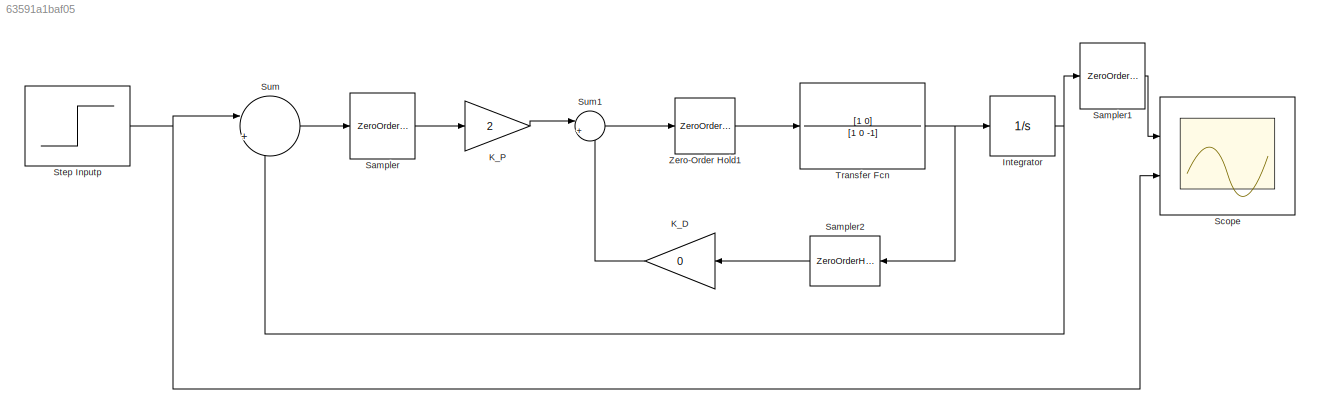
MODEL slx_63591a1baf05
KIND model
CONFIG AbsTol = auto
CONFIG EnableMultiTasking = off
CONFIG FixedStep = auto
CONFIG MaxStep = auto
CONFIG MinStep = auto
CONFIG RelTol = 1e-3
CONFIG SampleTimeConstraint = Unconstrained
CONFIG Solver = VariableStepAuto
CONFIG SolverName = VariableStepAuto
CONFIG StartTime = 0.0
CONFIG StopTime = 50
BLOCK [Integrator] Integrator
  Ports = [1, 1]
BLOCK [Gain] K_D
  Gain = 0
  OutDataTypeStr = Inherit: Inherit via internal rule
  ParamDataTypeStr = Inherit: Inherit via internal rule
  SaturateOnIntegerOverflow = off
BLOCK [Gain] K_P
  Gain = 2
  OutDataTypeStr = Inherit: Inherit via internal rule
  ParamDataTypeStr = Inherit: Inherit via internal rule
  SaturateOnIntegerOverflow = off
BLOCK [ZeroOrderHold] Sampler
  SampleTime = -1
BLOCK [ZeroOrderHold] Sampler1
  SampleTime = -1
BLOCK [ZeroOrderHold] Sampler2
  SampleTime = -1
BLOCK [Scope] Scope
  Floating = off
  NumInputPorts = 2
  Ports = [2]
  ScopeSpecificationString = Simulink.scopes.TimeScopeBlockCfg('CurrentConfiguration', extmgr.ConfigurationSet(extmgr.Configuration('Core','General UI',true,'FigureColor',[1 1 1]),extmgr.Configuration('Core','Source UI',true),extmgr.Configuration('Sources','WiredSimulink',true),extmgr.Configuration('Visuals','Time Domain',true,'SerializedDisplays',{struct('MinYLimReal','-56727562.90249','MaxYLimReal','168954734.99678','YLabel...<+1754ch>
BLOCK [Step] Step Inputp
  SampleTime = 0
  Time = 0
BLOCK [Sum] Sum
  IconShape = round
  InputSameDT = off
  Inputs = |+-
  OutDataTypeStr = Inherit: Inherit via internal rule
  Ports = [2, 1]
  SaturateOnIntegerOverflow = off
BLOCK [Sum] Sum1
  IconShape = round
  InputSameDT = off
  Inputs = |+-
  OutDataTypeStr = Inherit: Inherit via internal rule
  Ports = [2, 1]
  SaturateOnIntegerOverflow = off
BLOCK [TransferFcn] Transfer Fcn
  Denominator = [1 0 -1]
  Numerator = [1 0]
BLOCK [ZeroOrderHold] Zero-Order Hold1
  SampleTime = -1
NET Integrator:1 -> Sampler1:1, Sum:2
LINE K_D:1 -> Sum1:2
LINE K_P:1 -> Sum1:1
LINE Sampler1:1 -> Scope:1
LINE Sampler2:1 -> K_D:1
LINE Sampler:1 -> K_P:1
NET Step Inputp:1 -> Scope:2, Sum:1
LINE Sum1:1 -> Zero-Order Hold1:1
LINE Sum:1 -> Sampler:1
NET Transfer Fcn:1 -> Integrator:1, Sampler2:1
LINE Zero-Order Hold1:1 -> Transfer Fcn:1
note: NET lines group one-source signal fan-out (src -> all destinations, sorted); 1:1 wires keep LINE
